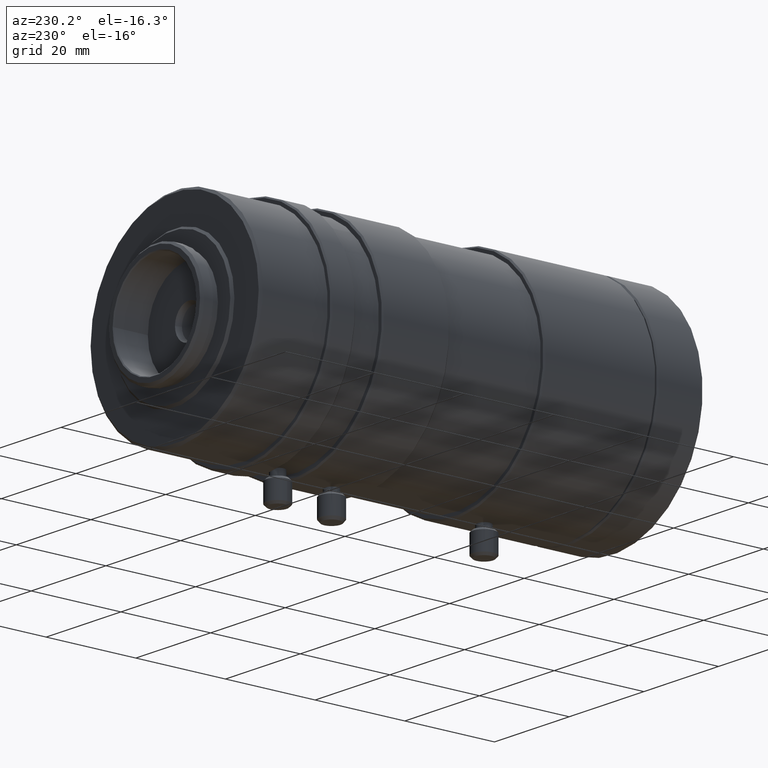
[diagram: clean part render]
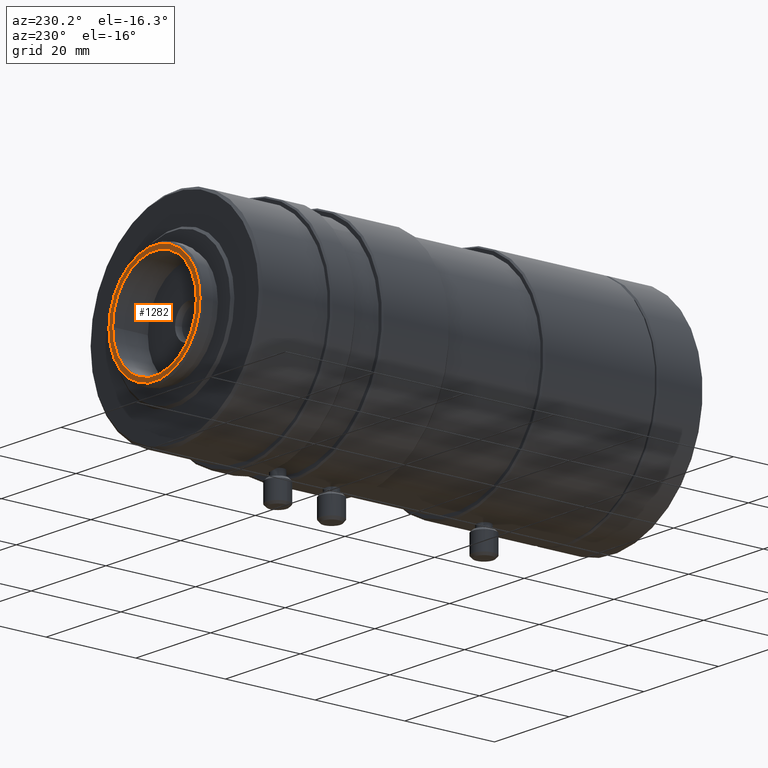
[diagram: same view with one face highlighted and labeled with its STEP entity id]
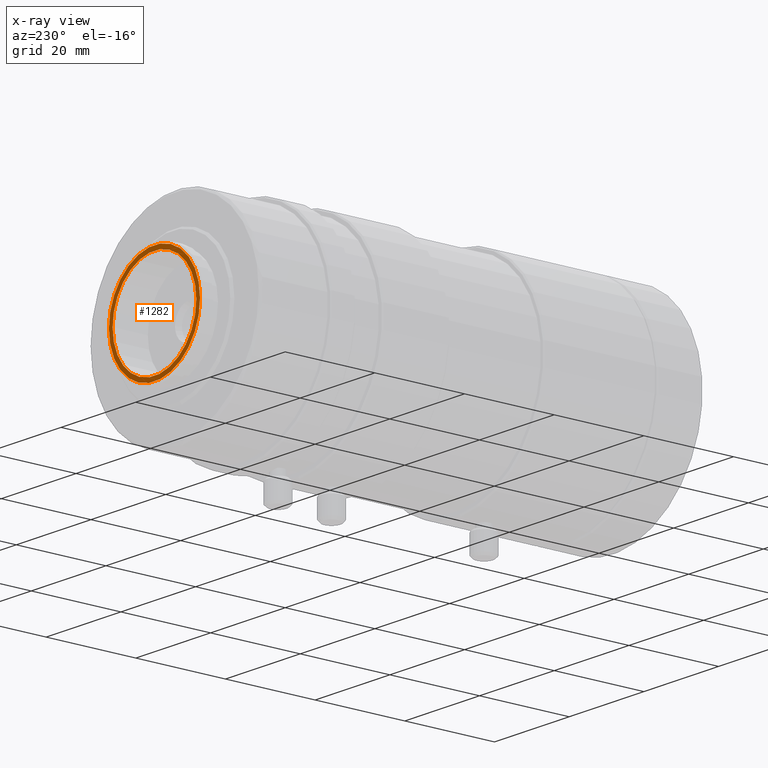
[diagram: x-ray of the same camera — body ghosted, the highlighted face saturated]
A machine part, auxiliary view. The second image highlights one B-rep face of the part: STEP entity #1282.
The next image is the same camera in x-ray: the body ghosted, the highlighted face saturated — about 0% of this face is hidden behind the body in this view.
In plain terms, the highlighted conical surface has half-angle 89.888 deg.
Its self-contained STEP definition (entity closure, byte-faithful):
#189=ORIENTED_EDGE('',*,*,#270,.T.);
#190=ORIENTED_EDGE('',*,*,#269,.F.);
#269=EDGE_CURVE('',#339,#339,#406,.T.);
#270=EDGE_CURVE('',#340,#340,#407,.T.);
#339=VERTEX_POINT('',#1932);
#340=VERTEX_POINT('',#1935);
#406=CIRCLE('',#1418,12.1999969482422);
#407=CIRCLE('',#1420,11.19999962088);
#536=EDGE_LOOP('',(#189));
#537=EDGE_LOOP('',(#190));
#676=FACE_BOUND('',#536,.T.);
#677=FACE_BOUND('',#537,.T.);
#717=CONICAL_SURFACE('',#1419,11.19999962088,1.56884922621257);
#1282=ADVANCED_FACE('',(#676,#677),#717,.T.);
#1418=AXIS2_PLACEMENT_3D('',#1931,#1680,#1681);
#1419=AXIS2_PLACEMENT_3D('',#1933,#1682,#1683);
#1420=AXIS2_PLACEMENT_3D('',#1934,#1684,#1685);
#1680=DIRECTION('',(-6.12303176911189E-17,-1.,1.69202101686471E-17));
#1681=DIRECTION('',(1.,-6.12303176911189E-17,0.));
#1682=DIRECTION('',(-6.12303176911189E-17,-1.,1.69202101686471E-17));
#1683=DIRECTION('',(1.,-6.12303176911189E-17,0.));
#1684=DIRECTION('',(-6.12303176911189E-17,-1.,1.69202101686471E-17));
#1685=DIRECTION('',(1.,-6.12303176911189E-17,0.));
#1931=CARTESIAN_POINT('',(6.27610756333968E-15,102.5,-1.73432154228633E-15));
#1932=CARTESIAN_POINT('',(12.1999969482422,102.5,-1.73432154228633E-15));
#1933=CARTESIAN_POINT('',(6.27622678475894E-15,102.501947097839,-1.73435448759098E-15));
#1934=CARTESIAN_POINT('',(6.27622678475894E-15,102.501947097839,-1.73435448759098E-15));
#1935=CARTESIAN_POINT('',(11.19999962088,102.501947097839,-1.73435448759098E-15));